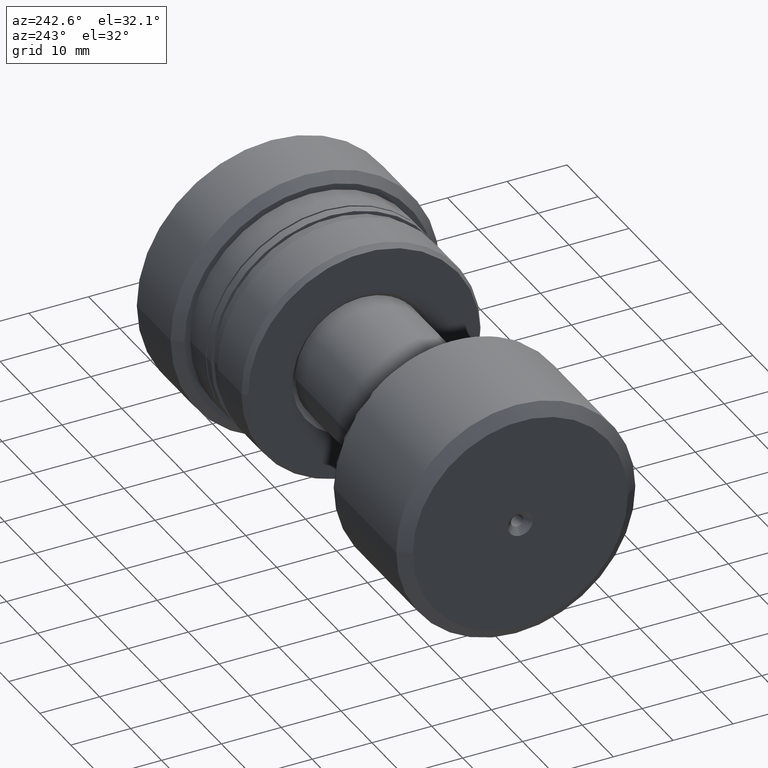
[diagram: clean part render]
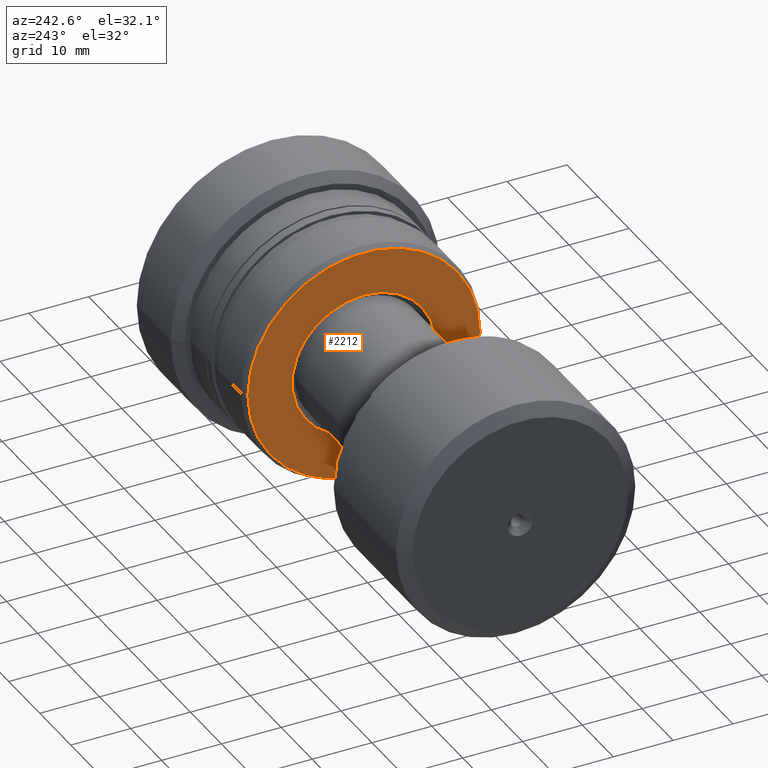
[diagram: same view with one face highlighted and labeled with its STEP entity id]
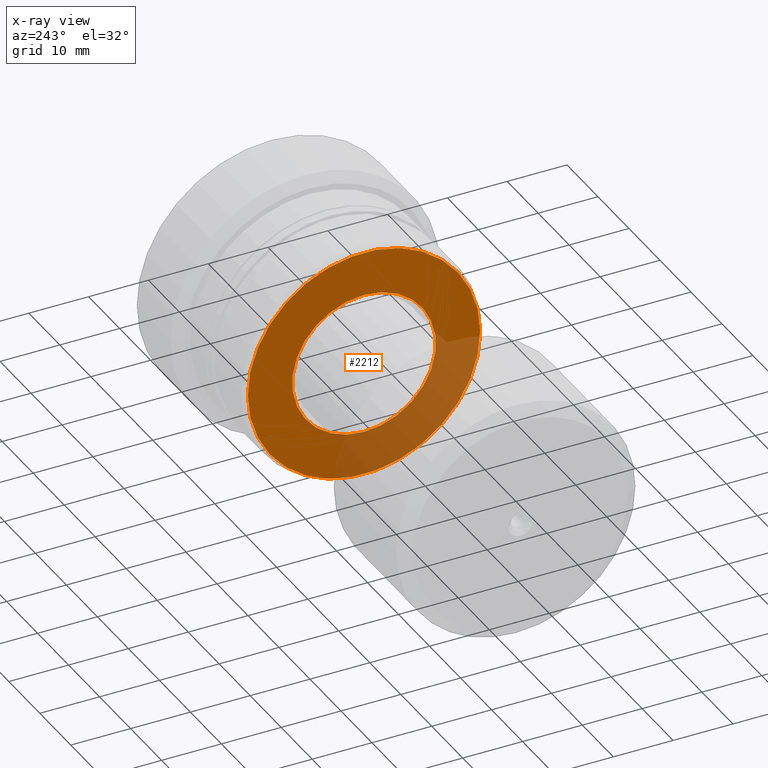
[diagram: x-ray of the same camera — body ghosted, the highlighted face saturated]
A machine part, auxiliary view. The second image highlights one B-rep face of the part: STEP entity #2212.
The next image is the same camera in x-ray: the body ghosted, the highlighted face saturated — about 30% of this face is hidden behind the body in this view.
In plain terms, the highlighted planar face has unit normal (1, 0, 0).
Its self-contained STEP definition (entity closure, byte-faithful):
#8 = DIRECTION ( 'NONE',  ( -2.891205793294666395E-15, 1.000000000000000000, 0.000000000000000000 ) ) ;
#478 = EDGE_CURVE ( 'NONE', #1808, #2003, #1527, .T. ) ;
#493 = DIRECTION ( 'NONE',  ( 1.000000000000000000, 3.039592211588219332E-15, -0.000000000000000000 ) ) ;
#532 = ORIENTED_EDGE ( 'NONE', *, *, #2257, .T. ) ;
#580 = ORIENTED_EDGE ( 'NONE', *, *, #478, .T. ) ;
#646 = FACE_OUTER_BOUND ( 'NONE', #962, .T. ) ;
#674 = CARTESIAN_POINT ( 'NONE',  ( -31.50000000000005684, -3.708233295962832451E-15, 0.000000000000000000 ) ) ;
#737 = CARTESIAN_POINT ( 'NONE',  ( -31.50000000000002842, 0.000000000000000000, 0.000000000000000000 ) ) ;
#742 = VERTEX_POINT ( 'NONE', #1781 ) ;
#774 = CARTESIAN_POINT ( 'NONE',  ( -31.50000000000002842, 1.469576158976825525E-15, -12.00000000000001421 ) ) ;
#799 = CIRCLE ( 'NONE', #1977, 19.42264973081046975 ) ;
#836 = FACE_BOUND ( 'NONE', #1039, .T. ) ;
#903 = DIRECTION ( 'NONE',  ( -3.215320566487873166E-15, 1.000000000000000000, 0.000000000000000000 ) ) ;
#962 = EDGE_LOOP ( 'NONE', ( #1854, #1743 ) ) ;
#964 = CIRCLE ( 'NONE', #1676, 12.00000000000004974 ) ;
#980 = CIRCLE ( 'NONE', #2231, 19.42264973081046975 ) ;
#1039 = EDGE_LOOP ( 'NONE', ( #532, #580 ) ) ;
#1132 = CARTESIAN_POINT ( 'NONE',  ( -31.50000000000002842, 0.000000000000000000, 12.00000000000001421 ) ) ;
#1173 = AXIS2_PLACEMENT_3D ( 'NONE', #737, #1702, #8 ) ;
#1228 = CARTESIAN_POINT ( 'NONE',  ( -31.50000000000002842, -3.708233295962742521E-15, 0.000000000000000000 ) ) ;
#1255 = DIRECTION ( 'NONE',  ( -3.215320566487873166E-15, 1.000000000000000000, 0.000000000000000000 ) ) ;
#1272 = CARTESIAN_POINT ( 'NONE',  ( -31.50000000000005684, -3.708233295962832451E-15, 0.000000000000000000 ) ) ;
#1391 = VERTEX_POINT ( 'NONE', #1623 ) ;
#1417 = DIRECTION ( 'NONE',  ( -3.039592211588219332E-15, 1.000000000000000000, 0.000000000000000000 ) ) ;
#1481 = AXIS2_PLACEMENT_3D ( 'NONE', #1228, #2333, #1417 ) ;
#1526 = CARTESIAN_POINT ( 'NONE',  ( -31.50000000000002842, 0.000000000000000000, 0.000000000000000000 ) ) ;
#1527 = CIRCLE ( 'NONE', #1173, 12.00000000000004974 ) ;
#1543 = EDGE_CURVE ( 'NONE', #1391, #742, #980, .T. ) ;
#1585 = PLANE ( 'NONE',  #1481 ) ;
#1623 = CARTESIAN_POINT ( 'NONE',  ( -31.49999999999999289, -19.42264973081047330, 2.413941090337215294E-15 ) ) ;
#1676 = AXIS2_PLACEMENT_3D ( 'NONE', #1526, #2273, #2085 ) ;
#1702 = DIRECTION ( 'NONE',  ( 1.000000000000000000, 3.039592211588219332E-15, -0.000000000000000000 ) ) ;
#1743 = ORIENTED_EDGE ( 'NONE', *, *, #1543, .F. ) ;
#1781 = CARTESIAN_POINT ( 'NONE',  ( -31.50000000000011724, 19.42264973081046620, 0.000000000000000000 ) ) ;
#1808 = VERTEX_POINT ( 'NONE', #774 ) ;
#1854 = ORIENTED_EDGE ( 'NONE', *, *, #2013, .F. ) ;
#1977 = AXIS2_PLACEMENT_3D ( 'NONE', #1272, #2260, #903 ) ;
#2003 = VERTEX_POINT ( 'NONE', #1132 ) ;
#2013 = EDGE_CURVE ( 'NONE', #742, #1391, #799, .T. ) ;
#2085 = DIRECTION ( 'NONE',  ( -2.891205793294666395E-15, 1.000000000000000000, 0.000000000000000000 ) ) ;
#2212 = ADVANCED_FACE ( 'NONE', ( #836, #646 ), #1585, .F. ) ;
#2231 = AXIS2_PLACEMENT_3D ( 'NONE', #674, #493, #1255 ) ;
#2257 = EDGE_CURVE ( 'NONE', #2003, #1808, #964, .T. ) ;
#2260 = DIRECTION ( 'NONE',  ( 1.000000000000000000, 3.039592211588219332E-15, -0.000000000000000000 ) ) ;
#2273 = DIRECTION ( 'NONE',  ( 1.000000000000000000, 3.039592211588219332E-15, -0.000000000000000000 ) ) ;
#2333 = DIRECTION ( 'NONE',  ( 1.000000000000000000, 3.039592211588219332E-15, -0.000000000000000000 ) ) ;